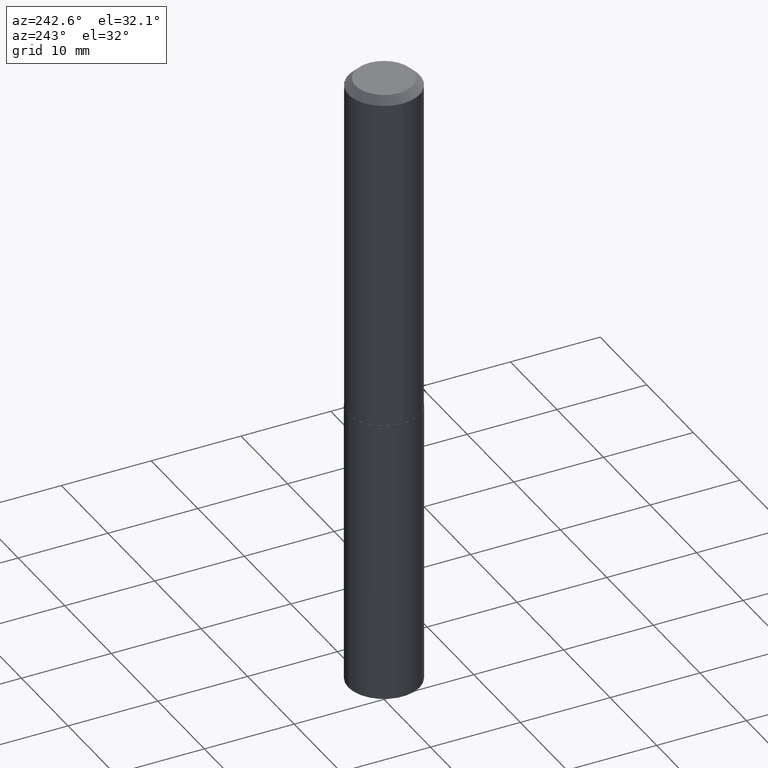
[diagram: clean part render]
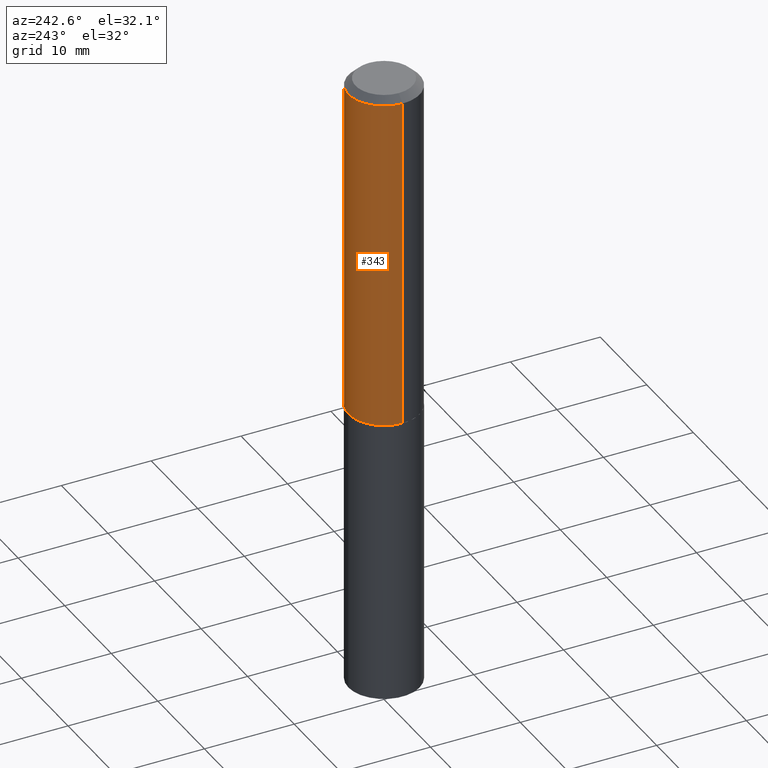
[diagram: same view with one face highlighted and labeled with its STEP entity id]
A machine part, auxiliary view. The second image highlights one B-rep face of the part: STEP entity #343.
In plain terms, the highlighted cylindrical surface (partial cylindrical patch) has radius 3.9688 mm, axis along (-0, 0, 1).
Its self-contained STEP definition (entity closure, byte-faithful):
#4 = ORIENTED_EDGE ( 'NONE', *, *, #236, .T. ) ;
#7 = LINE ( 'NONE', #43, #251 ) ;
#9 = ORIENTED_EDGE ( 'NONE', *, *, #152, .T. ) ;
#18 = VERTEX_POINT ( 'NONE', #85 ) ;
#24 = CIRCLE ( 'NONE', #255, 0.1562500000000000000 ) ;
#43 = CARTESIAN_POINT ( 'NONE',  ( -0.1562500000000001388, 1.110223024625157526E-15, -7.685836078523296765E-30 ) ) ;
#46 = FACE_OUTER_BOUND ( 'NONE', #348, .T. ) ;
#48 = DIRECTION ( 'NONE',  ( -2.445468806185136597E-29, 3.491481338843145583E-15, 1.000000000000000000 ) ) ;
#49 = VERTEX_POINT ( 'NONE', #296 ) ;
#72 = DIRECTION ( 'NONE',  ( -2.445468806185136877E-29, 3.491481338843145188E-15, 1.000000000000000000 ) ) ;
#85 = CARTESIAN_POINT ( 'NONE',  ( -0.1562500000000000000, -1.562069505091914769E-15, -0.03125000000000021511 ) ) ;
#99 = DIRECTION ( 'NONE',  ( 1.000000000000000000, -6.982962677686265133E-15, 0.000000000000000000 ) ) ;
#120 = CIRCLE ( 'NONE', #206, 0.1562500000000002498 ) ;
#134 = CARTESIAN_POINT ( 'NONE',  ( 3.666980474874613215E-29, -5.235476267595297462E-15, -1.499500000000000277 ) ) ;
#136 = CYLINDRICAL_SURFACE ( 'NONE', #374, 0.1562500000000001388 ) ;
#143 = VERTEX_POINT ( 'NONE', #241 ) ;
#152 = EDGE_CURVE ( 'NONE', #167, #18, #7, .T. ) ;
#153 = VECTOR ( 'NONE', #323, 39.37007874015748143 ) ;
#155 = CARTESIAN_POINT ( 'NONE',  ( -0.1562500000000002498, -4.125253242970138555E-15, -1.499500000000000277 ) ) ;
#160 = ORIENTED_EDGE ( 'NONE', *, *, #332, .F. ) ;
#167 = VERTEX_POINT ( 'NONE', #155 ) ;
#182 = EDGE_CURVE ( 'NONE', #49, #18, #24, .T. ) ;
#206 = AXIS2_PLACEMENT_3D ( 'NONE', #134, #252, #335 ) ;
#218 = CARTESIAN_POINT ( 'NONE',  ( 0.1562500000000001388, -1.091087918388480160E-15, 7.619026212181157383E-30 ) ) ;
#220 = LINE ( 'NONE', #218, #153 ) ;
#236 = EDGE_CURVE ( 'NONE', #143, #167, #120, .T. ) ;
#238 = ORIENTED_EDGE ( 'NONE', *, *, #182, .F. ) ;
#241 = CARTESIAN_POINT ( 'NONE',  ( 0.1562500000000002498, -6.326564185983777424E-15, -1.499500000000000277 ) ) ;
#251 = VECTOR ( 'NONE', #72, 39.37007874015748143 ) ;
#252 = DIRECTION ( 'NONE',  ( -2.445468806185136597E-29, 3.491481338843145583E-15, 1.000000000000000000 ) ) ;
#255 = AXIS2_PLACEMENT_3D ( 'NONE', #369, #372, #99 ) ;
#262 = CARTESIAN_POINT ( 'NONE',  ( 0.000000000000000000, 0.000000000000000000, 0.000000000000000000 ) ) ;
#291 = DIRECTION ( 'NONE',  ( 1.000000000000000000, -6.982962677686266711E-15, 4.876176775795936353E-29 ) ) ;
#296 = CARTESIAN_POINT ( 'NONE',  ( 0.1562500000000000000, -1.200196710227328077E-15, -0.03125000000000021511 ) ) ;
#323 = DIRECTION ( 'NONE',  ( -2.445468806185136877E-29, 3.491481338843145188E-15, 1.000000000000000000 ) ) ;
#332 = EDGE_CURVE ( 'NONE', #143, #49, #220, .T. ) ;
#335 = DIRECTION ( 'NONE',  ( 1.000000000000000000, -6.982962677686264344E-15, 0.000000000000000000 ) ) ;
#343 = ADVANCED_FACE ( 'NONE', ( #46 ), #136, .T. ) ;
#348 = EDGE_LOOP ( 'NONE', ( #4, #9, #238, #160 ) ) ;
#369 = CARTESIAN_POINT ( 'NONE',  ( 7.642090019328604414E-31, -1.091087918388490513E-16, -0.03125000000000021511 ) ) ;
#372 = DIRECTION ( 'NONE',  ( -2.445468806185136597E-29, 3.491481338843145583E-15, 1.000000000000000000 ) ) ;
#374 = AXIS2_PLACEMENT_3D ( 'NONE', #262, #48, #291 ) ;